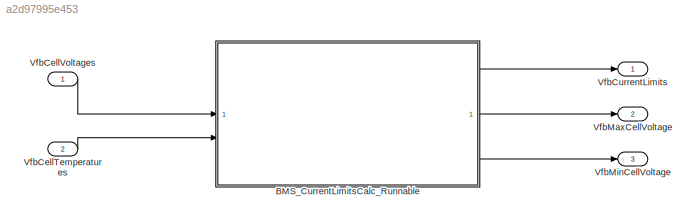
MODEL slx_a2d97995e453
KIND model
CONFIG AbsTol = auto
CONFIG EnableMultiTasking = on
CONFIG FixedStep = auto
CONFIG MaxStep = auto
CONFIG MinStep = auto
CONFIG RelTol = 1e-3
CONFIG SampleTimeConstraint = Unconstrained
CONFIG SolverName = FixedStepDiscrete
CONFIG StartTime = 0.0
CONFIG StopTime = 10.0
WORKSPACE source: external: MAT-File  (data not in archive)
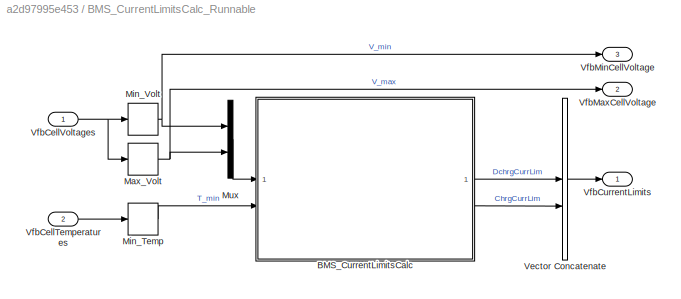
BLOCK [SubSystem] BMS_CurrentLimitsCalc_Runnable
  FunctionInterfaceSpec = Allow arguments (Optimized)
  PartitionName = BMS_CurrentLimitsCalc_Task
  Priority = 0
  RTWFcnNameOpts = Use subsystem name
  RTWFileName = BMS_CULM_COM
  RTWSystemCode = Nonreusable function
  ScheduleAs = Periodic partition
  SystemSampleTime = Schedule.BMS_CurrentLimitsCalc_Task
  Tag = BMS_CurrentLimitsCalc_Task
  TreatAsAtomicUnit = on
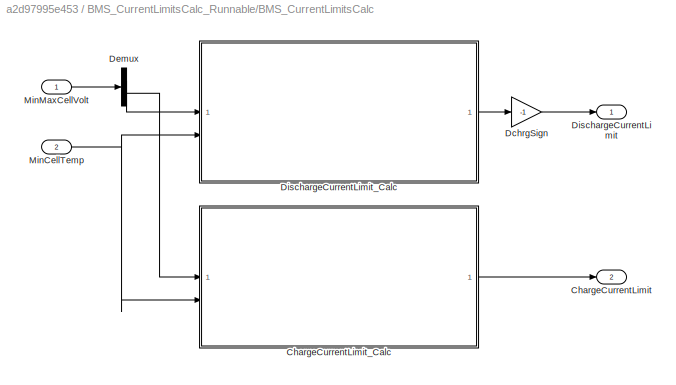
BLOCK [SubSystem] BMS_CurrentLimitsCalc_Runnable/BMS_CurrentLimitsCalc
BLOCK [Outport] BMS_CurrentLimitsCalc_Runnable/BMS_CurrentLimitsCalc/ChargeCurrentLimit
  Port = 2
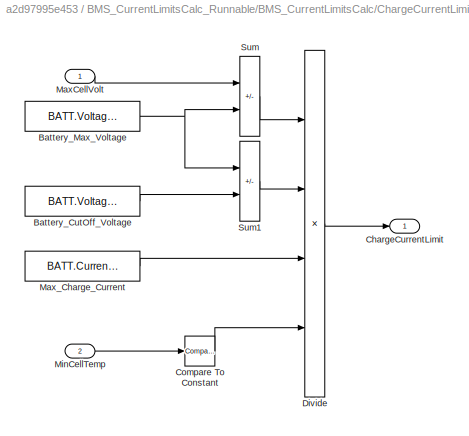
BLOCK [SubSystem] BMS_CurrentLimitsCalc_Runnable/BMS_CurrentLimitsCalc/ChargeCurrentLimit_Calc
  FunctionInterfaceSpec = Allow arguments (Optimized)
  RTWFcnNameOpts = Use subsystem name
  RTWSystemCode = Nonreusable function
  TreatAsAtomicUnit = on
BLOCK [Constant] BMS_CurrentLimitsCalc_Runnable/BMS_CurrentLimitsCalc/ChargeCurrentLimit_Calc/Battery_CutOff_Voltage
  OutDataTypeStr = single
  Value = BATT.Voltage.Cut_off
BLOCK [Constant] BMS_CurrentLimitsCalc_Runnable/BMS_CurrentLimitsCalc/ChargeCurrentLimit_Calc/Battery_Max_Voltage
  OutDataTypeStr = single
  Value = BATT.Voltage.Max_Chrg
BLOCK [Outport] BMS_CurrentLimitsCalc_Runnable/BMS_CurrentLimitsCalc/ChargeCurrentLimit_Calc/ChargeCurrentLimit
BLOCK [Reference] BMS_CurrentLimitsCalc_Runnable/BMS_CurrentLimitsCalc/ChargeCurrentLimit_Calc/Compare To Constant  REF=simulink/Logic and Bit
Operations/Compare
To Constant
  SourceBlock = simulink/Logic and Bit\nOperations/Compare\nTo Constant
  SourceType = Compare To Constant
BLOCK [Product] BMS_CurrentLimitsCalc_Runnable/BMS_CurrentLimitsCalc/ChargeCurrentLimit_Calc/Divide
  Inputs = */**
BLOCK [Inport] BMS_CurrentLimitsCalc_Runnable/BMS_CurrentLimitsCalc/ChargeCurrentLimit_Calc/MaxCellVolt
BLOCK [Constant] BMS_CurrentLimitsCalc_Runnable/BMS_CurrentLimitsCalc/ChargeCurrentLimit_Calc/Max_Charge_Current
  OutDataTypeStr = single
  Value = BATT.Current.Chrg
BLOCK [Inport] BMS_CurrentLimitsCalc_Runnable/BMS_CurrentLimitsCalc/ChargeCurrentLimit_Calc/MinCellTemp
  Port = 2
BLOCK [Sum] BMS_CurrentLimitsCalc_Runnable/BMS_CurrentLimitsCalc/ChargeCurrentLimit_Calc/Sum
  IconShape = rectangular
  Inputs = -+
BLOCK [Sum] BMS_CurrentLimitsCalc_Runnable/BMS_CurrentLimitsCalc/ChargeCurrentLimit_Calc/Sum1
  IconShape = rectangular
  Inputs = +-
BLOCK [Gain] BMS_CurrentLimitsCalc_Runnable/BMS_CurrentLimitsCalc/DchrgSign
  Gain = -1
BLOCK [Demux] BMS_CurrentLimitsCalc_Runnable/BMS_CurrentLimitsCalc/Demux
  Outputs = 2
BLOCK [Outport] BMS_CurrentLimitsCalc_Runnable/BMS_CurrentLimitsCalc/DischargeCurrentLimit
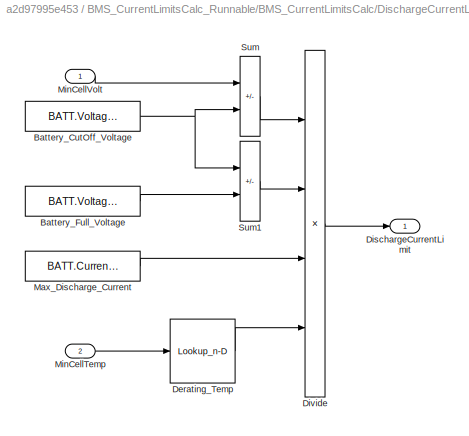
BLOCK [SubSystem] BMS_CurrentLimitsCalc_Runnable/BMS_CurrentLimitsCalc/DischargeCurrentLimit_Calc
  FunctionInterfaceSpec = Allow arguments (Optimized)
  RTWFcnNameOpts = Use subsystem name
  RTWSystemCode = Nonreusable function
  TreatAsAtomicUnit = on
BLOCK [Constant] BMS_CurrentLimitsCalc_Runnable/BMS_CurrentLimitsCalc/DischargeCurrentLimit_Calc/Battery_CutOff_Voltage
  OutDataTypeStr = single
  Value = BATT.Voltage.Cut_off
BLOCK [Constant] BMS_CurrentLimitsCalc_Runnable/BMS_CurrentLimitsCalc/DischargeCurrentLimit_Calc/Battery_Full_Voltage
  OutDataTypeStr = single
  Value = BATT.Voltage.Full_Dchrg
BLOCK [Lookup_n-D] BMS_CurrentLimitsCalc_Runnable/BMS_CurrentLimitsCalc/DischargeCurrentLimit_Calc/Derating_Temp
  BreakpointsForDimension1 = BATT.Temperature.T_LUT
  InputPortMap = u0
  InternalRulePriority = Speed
  NumberOfTableDimensions = 1
  RndMeth = Simplest
  Table = BATT.Temperature.derate_Fact
BLOCK [Outport] BMS_CurrentLimitsCalc_Runnable/BMS_CurrentLimitsCalc/DischargeCurrentLimit_Calc/DischargeCurrentLimit
BLOCK [Product] BMS_CurrentLimitsCalc_Runnable/BMS_CurrentLimitsCalc/DischargeCurrentLimit_Calc/Divide
  Inputs = */**
BLOCK [Constant] BMS_CurrentLimitsCalc_Runnable/BMS_CurrentLimitsCalc/DischargeCurrentLimit_Calc/Max_Discharge_Current
  OutDataTypeStr = single
  Value = BATT.Current.Dchrg
BLOCK [Inport] BMS_CurrentLimitsCalc_Runnable/BMS_CurrentLimitsCalc/DischargeCurrentLimit_Calc/MinCellTemp
  Port = 2
BLOCK [Inport] BMS_CurrentLimitsCalc_Runnable/BMS_CurrentLimitsCalc/DischargeCurrentLimit_Calc/MinCellVolt
BLOCK [Sum] BMS_CurrentLimitsCalc_Runnable/BMS_CurrentLimitsCalc/DischargeCurrentLimit_Calc/Sum
  IconShape = rectangular
  Inputs = +-
BLOCK [Sum] BMS_CurrentLimitsCalc_Runnable/BMS_CurrentLimitsCalc/DischargeCurrentLimit_Calc/Sum1
  IconShape = rectangular
  Inputs = -+
BLOCK [Inport] BMS_CurrentLimitsCalc_Runnable/BMS_CurrentLimitsCalc/MinCellTemp
  Port = 2
BLOCK [Inport] BMS_CurrentLimitsCalc_Runnable/BMS_CurrentLimitsCalc/MinMaxCellVolt
BLOCK [MinMax] BMS_CurrentLimitsCalc_Runnable/Max_Volt
  Function = max
  InputSameDT = on
  OutDataTypeStr = single
BLOCK [MinMax] BMS_CurrentLimitsCalc_Runnable/Min_Temp
  InputSameDT = on
  OutDataTypeStr = single
BLOCK [MinMax] BMS_CurrentLimitsCalc_Runnable/Min_Volt
  InputSameDT = on
  OutDataTypeStr = single
BLOCK [Mux] BMS_CurrentLimitsCalc_Runnable/Mux
  DisplayOption = bar
  Inputs = 2
BLOCK [Concatenate] BMS_CurrentLimitsCalc_Runnable/Vector Concatenate
BLOCK [Inport] BMS_CurrentLimitsCalc_Runnable/VfbCellTemperatures
  Port = 2
BLOCK [Inport] BMS_CurrentLimitsCalc_Runnable/VfbCellVoltages
BLOCK [Outport] BMS_CurrentLimitsCalc_Runnable/VfbCurrentLimits
BLOCK [Outport] BMS_CurrentLimitsCalc_Runnable/VfbMaxCellVoltage
  Port = 2
BLOCK [Outport] BMS_CurrentLimitsCalc_Runnable/VfbMinCellVoltage
  Port = 3
BLOCK [Inport] VfbCellTemperatures
  OutDataTypeStr = single
  Port = 2
  PortDimensions = BATT.Package.NumModules
  SignalType = real
  Unit = °C
BLOCK [Inport] VfbCellVoltages
  OutDataTypeStr = single
  PortDimensions = BATT.Package.NumModules
  SignalType = real
  Unit = V
BLOCK [Outport] VfbCurrentLimits
  OutDataTypeStr = single
  Unit = A
BLOCK [Outport] VfbMaxCellVoltage
  OutDataTypeStr = single
  Port = 2
  PortDimensions = 1
  Unit = V
BLOCK [Outport] VfbMinCellVoltage
  OutDataTypeStr = single
  Port = 3
  PortDimensions = 1
  Unit = V
LINE BMS_CurrentLimitsCalc_Runnable/BMS_CurrentLimitsCalc/ChargeCurrentLimit_Calc/Battery_CutOff_Voltage:1 -> BMS_CurrentLimitsCalc_Runnable/BMS_CurrentLimitsCalc/ChargeCurrentLimit_Calc/Sum1:2
NET BMS_CurrentLimitsCalc_Runnable/BMS_CurrentLimitsCalc/ChargeCurrentLimit_Calc/Battery_Max_Voltage:1 -> BMS_CurrentLimitsCalc_Runnable/BMS_CurrentLimitsCalc/ChargeCurrentLimit_Calc/Sum1:1, BMS_CurrentLimitsCalc_Runnable/BMS_CurrentLimitsCalc/ChargeCurrentLimit_Calc/Sum:2
LINE BMS_CurrentLimitsCalc_Runnable/BMS_CurrentLimitsCalc/ChargeCurrentLimit_Calc/Compare To Constant:1 -> BMS_CurrentLimitsCalc_Runnable/BMS_CurrentLimitsCalc/ChargeCurrentLimit_Calc/Divide:4
LINE BMS_CurrentLimitsCalc_Runnable/BMS_CurrentLimitsCalc/ChargeCurrentLimit_Calc/Divide:1 -> BMS_CurrentLimitsCalc_Runnable/BMS_CurrentLimitsCalc/ChargeCurrentLimit_Calc/ChargeCurrentLimit:1
LINE BMS_CurrentLimitsCalc_Runnable/BMS_CurrentLimitsCalc/ChargeCurrentLimit_Calc/MaxCellVolt:1 -> BMS_CurrentLimitsCalc_Runnable/BMS_CurrentLimitsCalc/ChargeCurrentLimit_Calc/Sum:1
LINE BMS_CurrentLimitsCalc_Runnable/BMS_CurrentLimitsCalc/ChargeCurrentLimit_Calc/Max_Charge_Current:1 -> BMS_CurrentLimitsCalc_Runnable/BMS_CurrentLimitsCalc/ChargeCurrentLimit_Calc/Divide:3
LINE BMS_CurrentLimitsCalc_Runnable/BMS_CurrentLimitsCalc/ChargeCurrentLimit_Calc/MinCellTemp:1 -> BMS_CurrentLimitsCalc_Runnable/BMS_CurrentLimitsCalc/ChargeCurrentLimit_Calc/Compare To Constant:1
LINE BMS_CurrentLimitsCalc_Runnable/BMS_CurrentLimitsCalc/ChargeCurrentLimit_Calc/Sum1:1 -> BMS_CurrentLimitsCalc_Runnable/BMS_CurrentLimitsCalc/ChargeCurrentLimit_Calc/Divide:2
LINE BMS_CurrentLimitsCalc_Runnable/BMS_CurrentLimitsCalc/ChargeCurrentLimit_Calc/Sum:1 -> BMS_CurrentLimitsCalc_Runnable/BMS_CurrentLimitsCalc/ChargeCurrentLimit_Calc/Divide:1
LINE BMS_CurrentLimitsCalc_Runnable/BMS_CurrentLimitsCalc/ChargeCurrentLimit_Calc:1 -> BMS_CurrentLimitsCalc_Runnable/BMS_CurrentLimitsCalc/ChargeCurrentLimit:1
LINE BMS_CurrentLimitsCalc_Runnable/BMS_CurrentLimitsCalc/DchrgSign:1 -> BMS_CurrentLimitsCalc_Runnable/BMS_CurrentLimitsCalc/DischargeCurrentLimit:1
LINE BMS_CurrentLimitsCalc_Runnable/BMS_CurrentLimitsCalc/Demux:1 -> BMS_CurrentLimitsCalc_Runnable/BMS_CurrentLimitsCalc/DischargeCurrentLimit_Calc:1
LINE BMS_CurrentLimitsCalc_Runnable/BMS_CurrentLimitsCalc/Demux:2 -> BMS_CurrentLimitsCalc_Runnable/BMS_CurrentLimitsCalc/ChargeCurrentLimit_Calc:1
NET BMS_CurrentLimitsCalc_Runnable/BMS_CurrentLimitsCalc/DischargeCurrentLimit_Calc/Battery_CutOff_Voltage:1 -> BMS_CurrentLimitsCalc_Runnable/BMS_CurrentLimitsCalc/DischargeCurrentLimit_Calc/Sum1:1, BMS_CurrentLimitsCalc_Runnable/BMS_CurrentLimitsCalc/DischargeCurrentLimit_Calc/Sum:2
LINE BMS_CurrentLimitsCalc_Runnable/BMS_CurrentLimitsCalc/DischargeCurrentLimit_Calc/Battery_Full_Voltage:1 -> BMS_CurrentLimitsCalc_Runnable/BMS_CurrentLimitsCalc/DischargeCurrentLimit_Calc/Sum1:2
LINE BMS_CurrentLimitsCalc_Runnable/BMS_CurrentLimitsCalc/DischargeCurrentLimit_Calc/Derating_Temp:1 -> BMS_CurrentLimitsCalc_Runnable/BMS_CurrentLimitsCalc/DischargeCurrentLimit_Calc/Divide:4
LINE BMS_CurrentLimitsCalc_Runnable/BMS_CurrentLimitsCalc/DischargeCurrentLimit_Calc/Divide:1 -> BMS_CurrentLimitsCalc_Runnable/BMS_CurrentLimitsCalc/DischargeCurrentLimit_Calc/DischargeCurrentLimit:1
LINE BMS_CurrentLimitsCalc_Runnable/BMS_CurrentLimitsCalc/DischargeCurrentLimit_Calc/Max_Discharge_Current:1 -> BMS_CurrentLimitsCalc_Runnable/BMS_CurrentLimitsCalc/DischargeCurrentLimit_Calc/Divide:3
LINE BMS_CurrentLimitsCalc_Runnable/BMS_CurrentLimitsCalc/DischargeCurrentLimit_Calc/MinCellTemp:1 -> BMS_CurrentLimitsCalc_Runnable/BMS_CurrentLimitsCalc/DischargeCurrentLimit_Calc/Derating_Temp:1
LINE BMS_CurrentLimitsCalc_Runnable/BMS_CurrentLimitsCalc/DischargeCurrentLimit_Calc/MinCellVolt:1 -> BMS_CurrentLimitsCalc_Runnable/BMS_CurrentLimitsCalc/DischargeCurrentLimit_Calc/Sum:1
LINE BMS_CurrentLimitsCalc_Runnable/BMS_CurrentLimitsCalc/DischargeCurrentLimit_Calc/Sum1:1 -> BMS_CurrentLimitsCalc_Runnable/BMS_CurrentLimitsCalc/DischargeCurrentLimit_Calc/Divide:2
LINE BMS_CurrentLimitsCalc_Runnable/BMS_CurrentLimitsCalc/DischargeCurrentLimit_Calc/Sum:1 -> BMS_CurrentLimitsCalc_Runnable/BMS_CurrentLimitsCalc/DischargeCurrentLimit_Calc/Divide:1
LINE BMS_CurrentLimitsCalc_Runnable/BMS_CurrentLimitsCalc/DischargeCurrentLimit_Calc:1 -> BMS_CurrentLimitsCalc_Runnable/BMS_CurrentLimitsCalc/DchrgSign:1
NET BMS_CurrentLimitsCalc_Runnable/BMS_CurrentLimitsCalc/MinCellTemp:1 -> BMS_CurrentLimitsCalc_Runnable/BMS_CurrentLimitsCalc/ChargeCurrentLimit_Calc:2, BMS_CurrentLimitsCalc_Runnable/BMS_CurrentLimitsCalc/DischargeCurrentLimit_Calc:2
LINE BMS_CurrentLimitsCalc_Runnable/BMS_CurrentLimitsCalc/MinMaxCellVolt:1 -> BMS_CurrentLimitsCalc_Runnable/BMS_CurrentLimitsCalc/Demux:1
LINE BMS_CurrentLimitsCalc_Runnable/BMS_CurrentLimitsCalc:1 -> BMS_CurrentLimitsCalc_Runnable/Vector Concatenate:1
LINE BMS_CurrentLimitsCalc_Runnable/BMS_CurrentLimitsCalc:2 -> BMS_CurrentLimitsCalc_Runnable/Vector Concatenate:2
NET BMS_CurrentLimitsCalc_Runnable/Max_Volt:1 -> BMS_CurrentLimitsCalc_Runnable/Mux:2, BMS_CurrentLimitsCalc_Runnable/VfbMaxCellVoltage:1
LINE BMS_CurrentLimitsCalc_Runnable/Min_Temp:1 -> BMS_CurrentLimitsCalc_Runnable/BMS_CurrentLimitsCalc:2
NET BMS_CurrentLimitsCalc_Runnable/Min_Volt:1 -> BMS_CurrentLimitsCalc_Runnable/Mux:1, BMS_CurrentLimitsCalc_Runnable/VfbMinCellVoltage:1
LINE BMS_CurrentLimitsCalc_Runnable/Mux:1 -> BMS_CurrentLimitsCalc_Runnable/BMS_CurrentLimitsCalc:1
LINE BMS_CurrentLimitsCalc_Runnable/Vector Concatenate:1 -> BMS_CurrentLimitsCalc_Runnable/VfbCurrentLimits:1
LINE BMS_CurrentLimitsCalc_Runnable/VfbCellTemperatures:1 -> BMS_CurrentLimitsCalc_Runnable/Min_Temp:1
NET BMS_CurrentLimitsCalc_Runnable/VfbCellVoltages:1 -> BMS_CurrentLimitsCalc_Runnable/Max_Volt:1, BMS_CurrentLimitsCalc_Runnable/Min_Volt:1
LINE BMS_CurrentLimitsCalc_Runnable:1 -> VfbCurrentLimits:1
LINE BMS_CurrentLimitsCalc_Runnable:2 -> VfbMaxCellVoltage:1
LINE BMS_CurrentLimitsCalc_Runnable:3 -> VfbMinCellVoltage:1
LINE VfbCellTemperatures:1 -> BMS_CurrentLimitsCalc_Runnable:2
LINE VfbCellVoltages:1 -> BMS_CurrentLimitsCalc_Runnable:1
note: NET lines group one-source signal fan-out (src -> all destinations, sorted); 1:1 wires keep LINE
